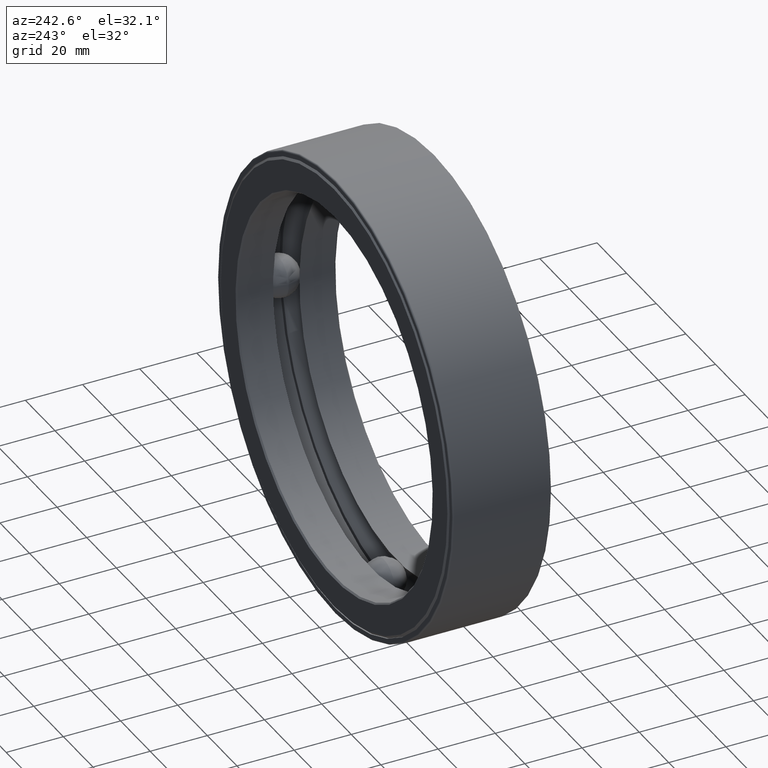
[diagram: clean part render]
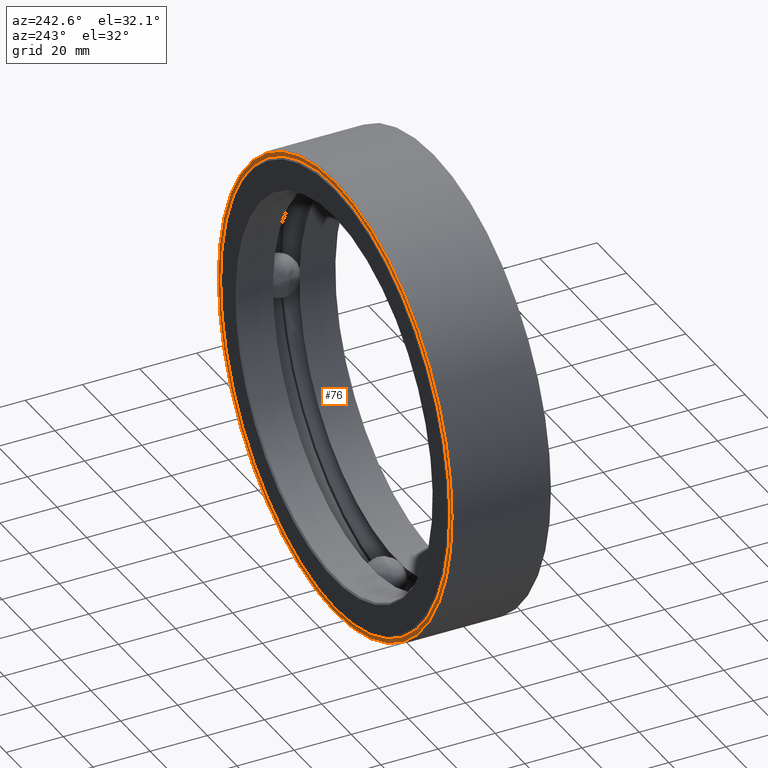
[diagram: same view with one face highlighted and labeled with its STEP entity id]
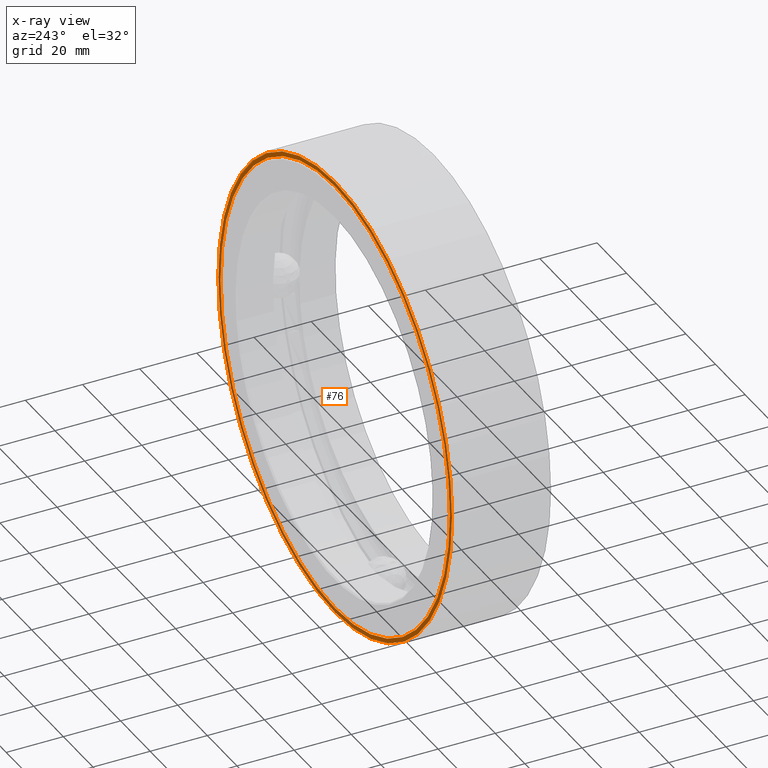
[diagram: x-ray of the same camera — body ghosted, the highlighted face saturated]
A machine part, auxiliary view. The second image highlights one B-rep face of the part: STEP entity #76.
The next image is the same camera in x-ray: the body ghosted, the highlighted face saturated — about 0% of this face is hidden behind the body in this view.
In plain terms, the highlighted planar face has unit normal (0, -1, 0).
Its self-contained STEP definition (entity closure, byte-faithful):
#6 = CARTESIAN_POINT ( 'NONE',  ( 0.0000000000000000000, 1.359999999999999900, 0.0000000000000000000 ) ) ;
#12 = PLANE ( 'NONE',  #190 ) ;
#20 = DIRECTION ( 'NONE',  ( -0.0000000000000000000, 1.000000000000000000, -0.0000000000000000000 ) ) ;
#22 = EDGE_CURVE ( 'NONE', #226, #226, #65, .T. ) ;
#31 = ORIENTED_EDGE ( 'NONE', *, *, #96, .F. ) ;
#34 = VERTEX_POINT ( 'NONE', #402 ) ;
#65 = CIRCLE ( 'NONE', #562, 3.105000000000000400 ) ;
#76 = ADVANCED_FACE ( 'NONE', ( #97, #82 ), #12, .F. ) ;
#82 = FACE_OUTER_BOUND ( 'NONE', #327, .T. ) ;
#96 = EDGE_CURVE ( 'NONE', #34, #34, #410, .T. ) ;
#97 = FACE_BOUND ( 'NONE', #361, .T. ) ;
#127 = DIRECTION ( 'NONE',  ( 0.0000000000000000000, -1.000000000000000000, 0.0000000000000000000 ) ) ;
#134 = CARTESIAN_POINT ( 'NONE',  ( 0.0000000000000000000, 1.359999999999999900, 0.0000000000000000000 ) ) ;
#135 = ORIENTED_EDGE ( 'NONE', *, *, #22, .T. ) ;
#190 = AXIS2_PLACEMENT_3D ( 'NONE', #395, #127, #493 ) ;
#226 = VERTEX_POINT ( 'NONE', #535 ) ;
#301 = DIRECTION ( 'NONE',  ( -0.0000000000000000000, 1.000000000000000000, -0.0000000000000000000 ) ) ;
#327 = EDGE_LOOP ( 'NONE', ( #135 ) ) ;
#358 = DIRECTION ( 'NONE',  ( 0.0000000000000000000, 0.0000000000000000000, 1.000000000000000000 ) ) ;
#361 = EDGE_LOOP ( 'NONE', ( #31 ) ) ;
#395 = CARTESIAN_POINT ( 'NONE',  ( 0.0000000000000000000, 1.359999999999999900, 0.0000000000000000000 ) ) ;
#402 = CARTESIAN_POINT ( 'NONE',  ( 0.0000000000000000000, 1.359999999999999900, 3.044999999999999900 ) ) ;
#410 = CIRCLE ( 'NONE', #506, 3.044999999999999900 ) ;
#452 = DIRECTION ( 'NONE',  ( 0.0000000000000000000, 0.0000000000000000000, 1.000000000000000000 ) ) ;
#493 = DIRECTION ( 'NONE',  ( 0.0000000000000000000, -0.0000000000000000000, -1.000000000000000000 ) ) ;
#506 = AXIS2_PLACEMENT_3D ( 'NONE', #134, #20, #358 ) ;
#535 = CARTESIAN_POINT ( 'NONE',  ( 0.0000000000000000000, 1.359999999999999900, 3.105000000000000400 ) ) ;
#562 = AXIS2_PLACEMENT_3D ( 'NONE', #6, #301, #452 ) ;